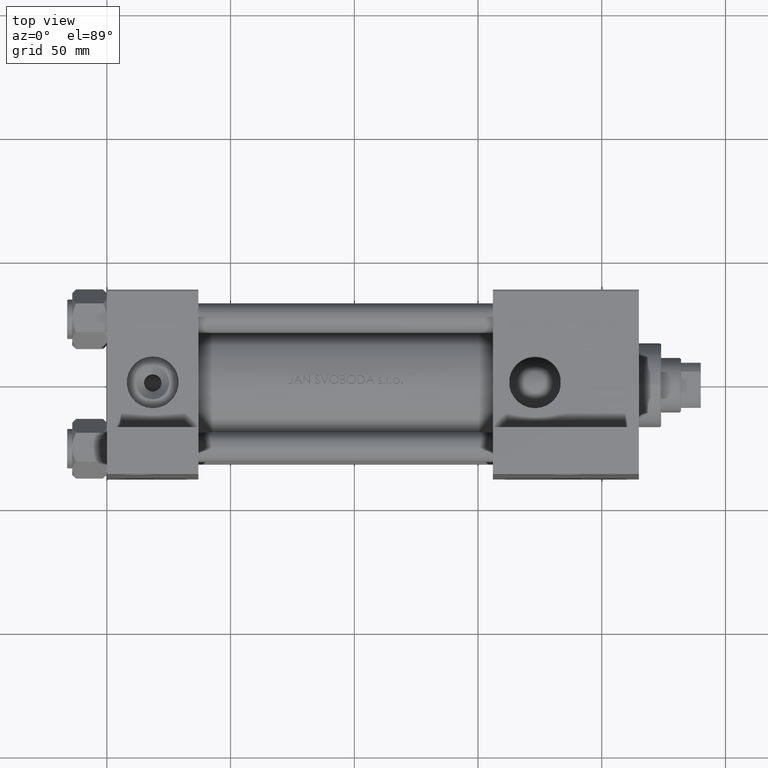
[diagram: clean part render]
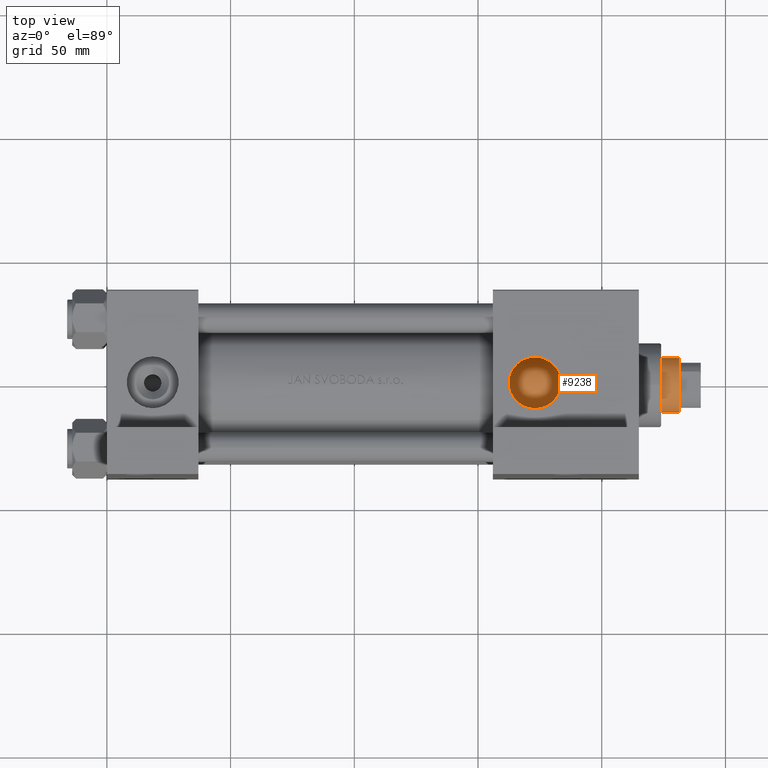
[diagram: same view with one face highlighted and labeled with its STEP entity id]
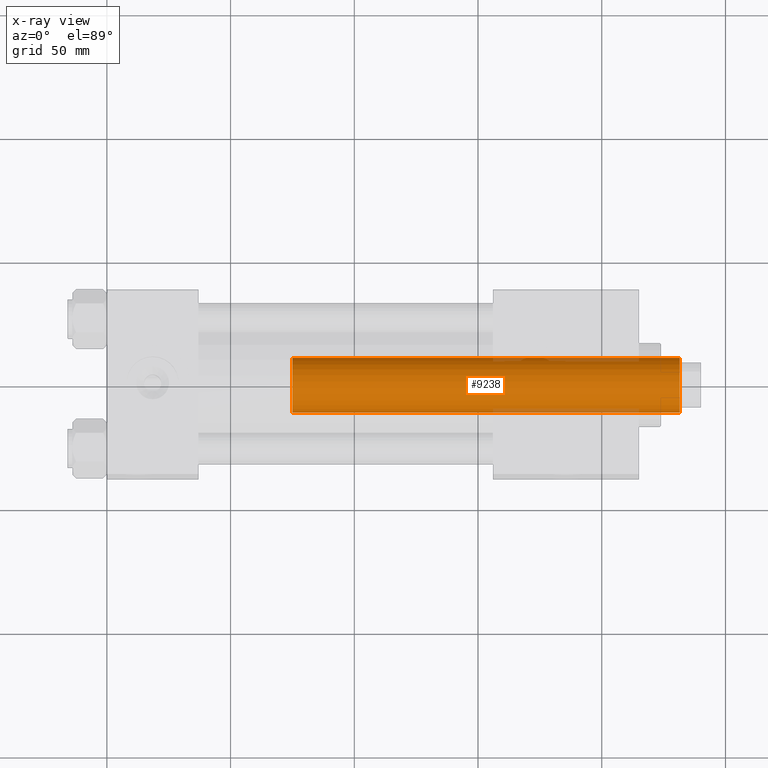
[diagram: x-ray of the same camera — body ghosted, the highlighted face saturated]
A machine part, top view. The second image highlights one B-rep face of the part: STEP entity #9238.
The next image is the same camera in x-ray: the body ghosted, the highlighted face saturated — about 5% of this face is hidden behind the body in this view.
In plain terms, the highlighted cylindrical surface (edge-blend (fillet) strip) has radius 11 mm, axis along (-1, 0, 0).
Its self-contained STEP definition (entity closure, byte-faithful):
#883 = CARTESIAN_POINT ( 'NONE',  ( -11.00000000000000000, 0.000000000000000000, 194.5000000000000000 ) ) ;
#5373 = LINE ( 'NONE', #19587, #36408 ) ;
#5756 = DIRECTION ( 'NONE',  ( -0.000000000000000000, -0.000000000000000000, -1.000000000000000000 ) ) ;
#7342 = EDGE_CURVE ( 'NONE', #33000, #33986, #8980, .T. ) ;
#8980 = LINE ( 'NONE', #39886, #21446 ) ;
#9238 = ADVANCED_FACE ( 'NONE', ( #24707 ), #24462, .T. ) ;
#9757 = DIRECTION ( 'NONE',  ( 0.000000000000000000, 0.000000000000000000, -1.000000000000000000 ) ) ;
#9981 = CARTESIAN_POINT ( 'NONE',  ( 0.000000000000000000, 0.000000000000000000, 195.0000000000000000 ) ) ;
#14264 = CARTESIAN_POINT ( 'NONE',  ( 11.00000000000000000, 1.347111479062088405E-15, 38.00000000000000000 ) ) ;
#14334 = CARTESIAN_POINT ( 'NONE',  ( 0.000000000000000000, 0.000000000000000000, 38.00000000000000000 ) ) ;
#14637 = ORIENTED_EDGE ( 'NONE', *, *, #26264, .T. ) ;
#19587 = CARTESIAN_POINT ( 'NONE',  ( 11.00000000000000000, 1.347111479062088405E-15, 195.0000000000000000 ) ) ;
#21153 = ORIENTED_EDGE ( 'NONE', *, *, #41261, .F. ) ;
#21446 = VECTOR ( 'NONE', #5756, 1000.000000000000000 ) ;
#21806 = AXIS2_PLACEMENT_3D ( 'NONE', #14334, #41008, #31649 ) ;
#22376 = EDGE_CURVE ( 'NONE', #33986, #43686, #38535, .T. ) ;
#24462 = CYLINDRICAL_SURFACE ( 'NONE', #31070, 11.00000000000000000 ) ;
#24707 = FACE_OUTER_BOUND ( 'NONE', #36952, .T. ) ;
#25220 = DIRECTION ( 'NONE',  ( 1.000000000000000000, 0.000000000000000000, 0.000000000000000000 ) ) ;
#26264 = EDGE_CURVE ( 'NONE', #29932, #33000, #39362, .T. ) ;
#29932 = VERTEX_POINT ( 'NONE', #46871 ) ;
#31070 = AXIS2_PLACEMENT_3D ( 'NONE', #9981, #40147, #36167 ) ;
#31649 = DIRECTION ( 'NONE',  ( 1.000000000000000000, 0.000000000000000000, 0.000000000000000000 ) ) ;
#33000 = VERTEX_POINT ( 'NONE', #883 ) ;
#33986 = VERTEX_POINT ( 'NONE', #42922 ) ;
#34410 = ORIENTED_EDGE ( 'NONE', *, *, #7342, .T. ) ;
#36167 = DIRECTION ( 'NONE',  ( -1.000000000000000000, 0.000000000000000000, 0.000000000000000000 ) ) ;
#36188 = AXIS2_PLACEMENT_3D ( 'NONE', #36911, #9757, #25220 ) ;
#36408 = VECTOR ( 'NONE', #46973, 1000.000000000000000 ) ;
#36911 = CARTESIAN_POINT ( 'NONE',  ( 0.000000000000000000, 0.000000000000000000, 194.5000000000000000 ) ) ;
#36952 = EDGE_LOOP ( 'NONE', ( #21153, #14637, #34410, #39577 ) ) ;
#38535 = CIRCLE ( 'NONE', #21806, 11.00000000000000000 ) ;
#39362 = CIRCLE ( 'NONE', #36188, 11.00000000000000000 ) ;
#39577 = ORIENTED_EDGE ( 'NONE', *, *, #22376, .T. ) ;
#39886 = CARTESIAN_POINT ( 'NONE',  ( -11.00000000000000000, 0.000000000000000000, 195.0000000000000000 ) ) ;
#40147 = DIRECTION ( 'NONE',  ( -0.000000000000000000, -0.000000000000000000, -1.000000000000000000 ) ) ;
#41008 = DIRECTION ( 'NONE',  ( 0.000000000000000000, 0.000000000000000000, 1.000000000000000000 ) ) ;
#41261 = EDGE_CURVE ( 'NONE', #29932, #43686, #5373, .T. ) ;
#42922 = CARTESIAN_POINT ( 'NONE',  ( -11.00000000000000000, 0.000000000000000000, 38.00000000000000000 ) ) ;
#43686 = VERTEX_POINT ( 'NONE', #14264 ) ;
#46871 = CARTESIAN_POINT ( 'NONE',  ( 11.00000000000000000, 1.347111479062088405E-15, 194.5000000000000000 ) ) ;
#46973 = DIRECTION ( 'NONE',  ( -0.000000000000000000, -0.000000000000000000, -1.000000000000000000 ) ) ;